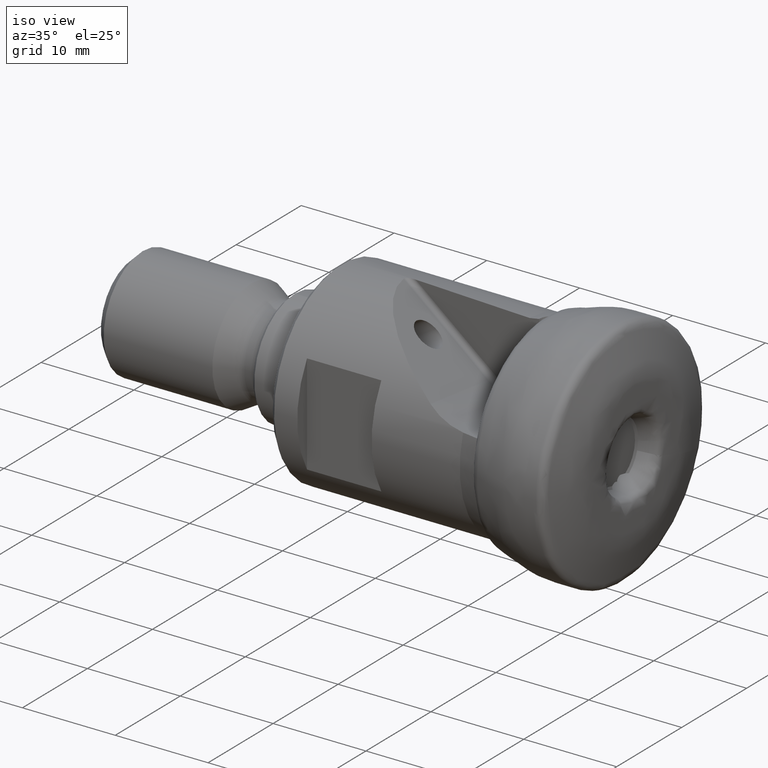
[diagram: clean part render]
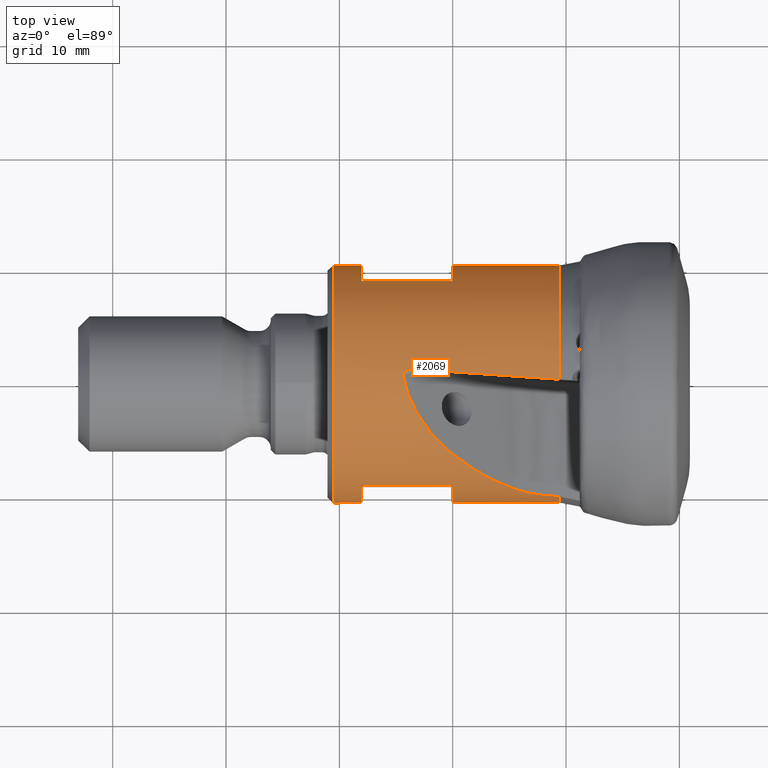
[diagram: tour spotlight — one face highlighted and labeled with its STEP entity id]
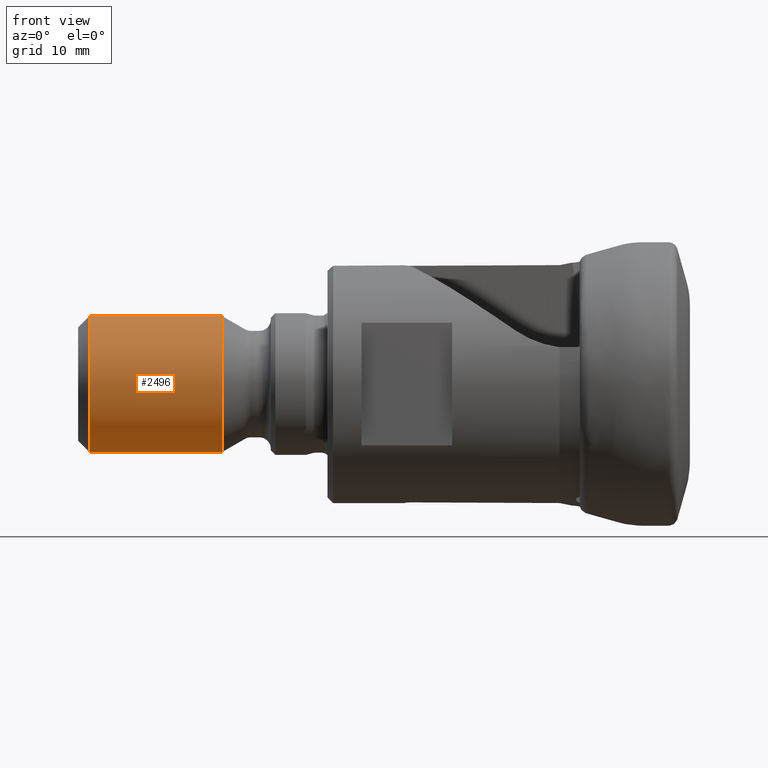
[diagram: tour spotlight — one face highlighted and labeled with its STEP entity id]
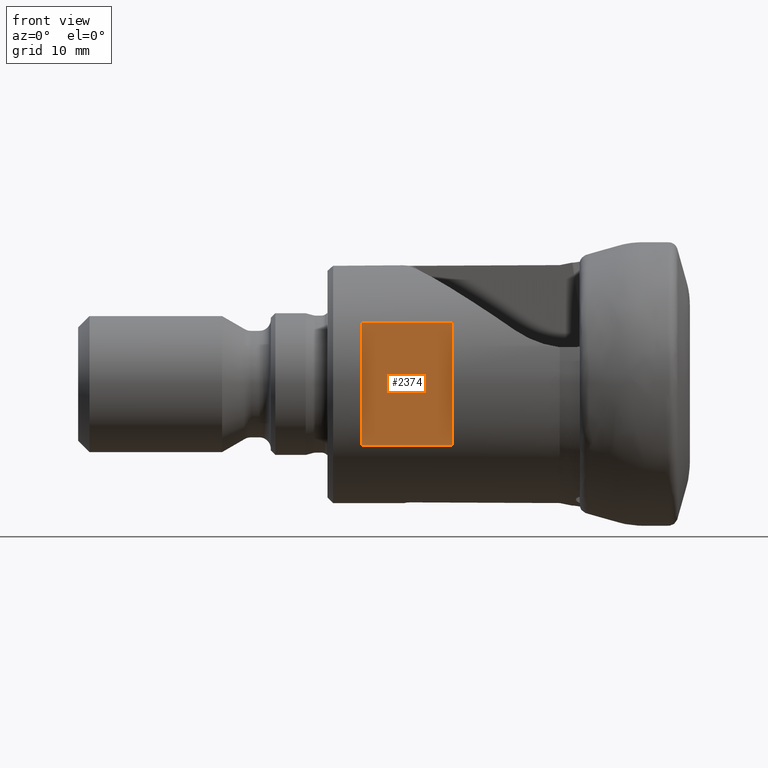
[diagram: tour spotlight — one face highlighted and labeled with its STEP entity id]
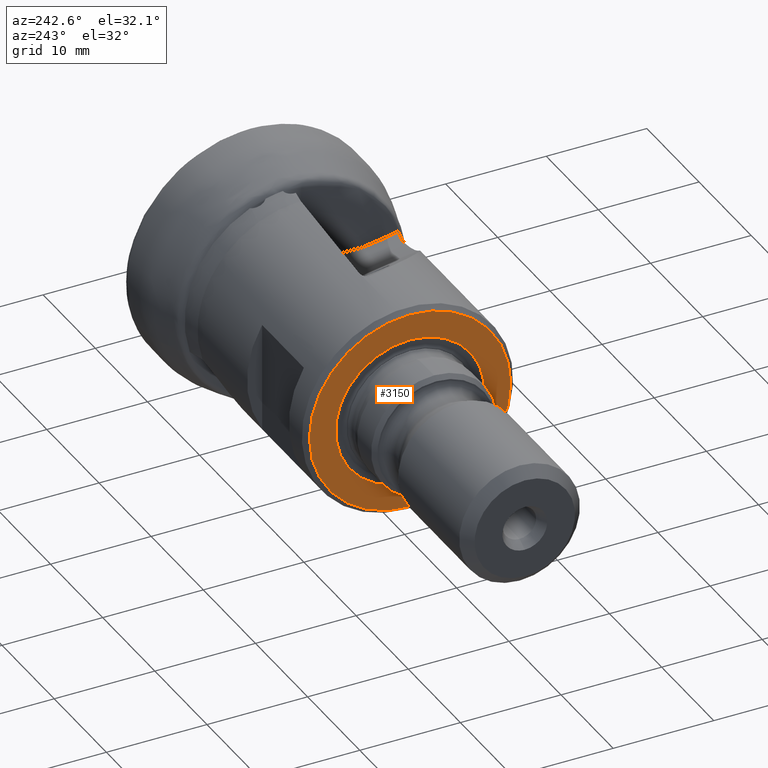
[diagram: tour spotlight — one face highlighted and labeled with its STEP entity id]
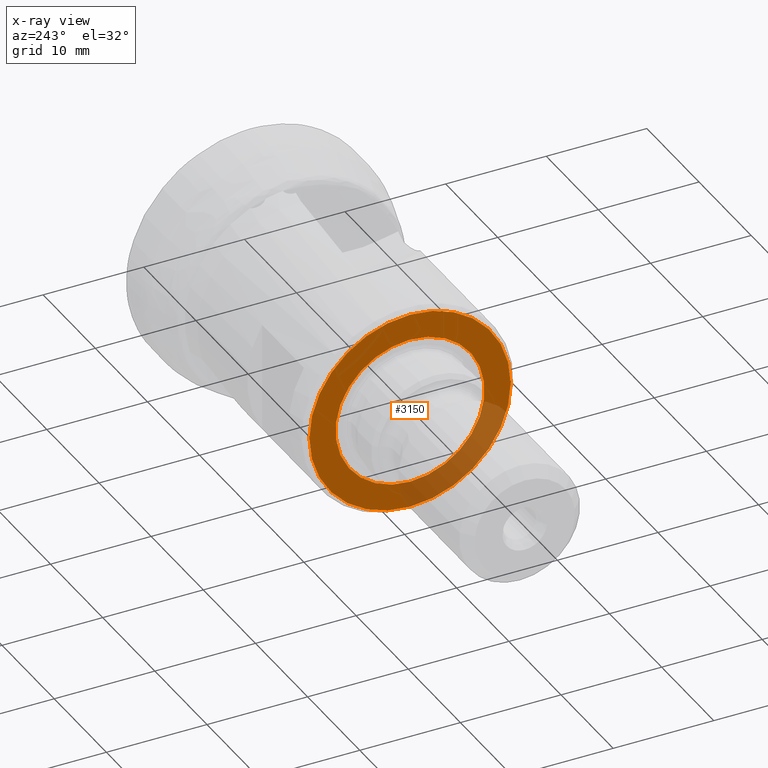
[diagram: x-ray of the same camera — body ghosted, this tour face saturated]
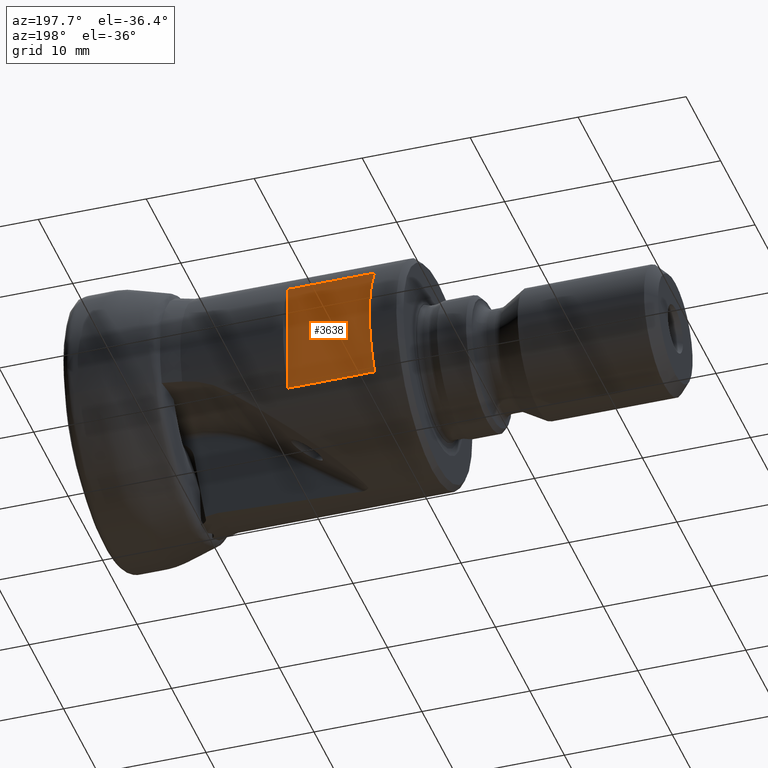
[diagram: tour spotlight — one face highlighted and labeled with its STEP entity id]
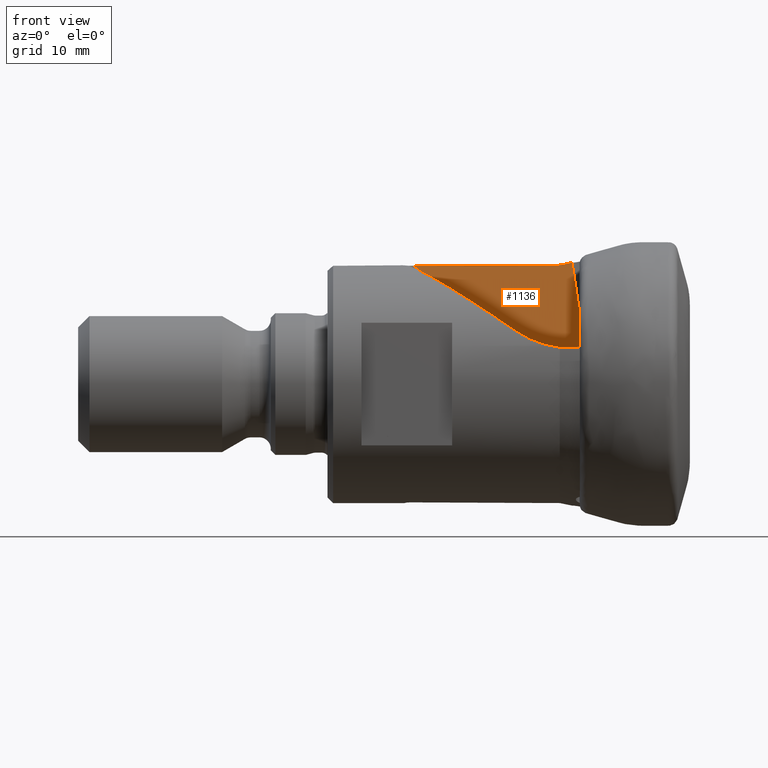
[diagram: tour spotlight — one face highlighted and labeled with its STEP entity id]
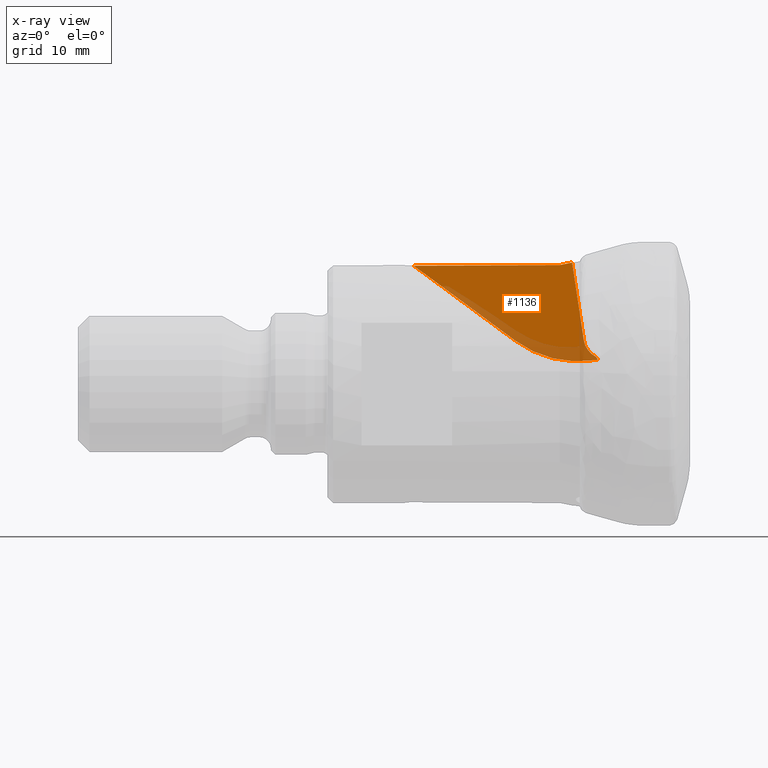
[diagram: x-ray of the same camera — body ghosted, this tour face saturated]
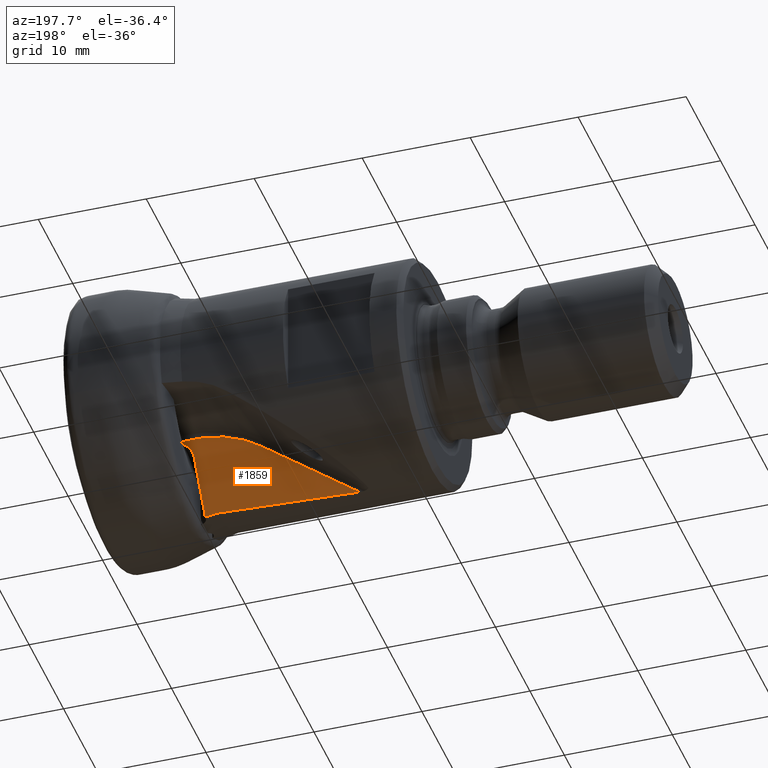
[diagram: tour spotlight — one face highlighted and labeled with its STEP entity id]
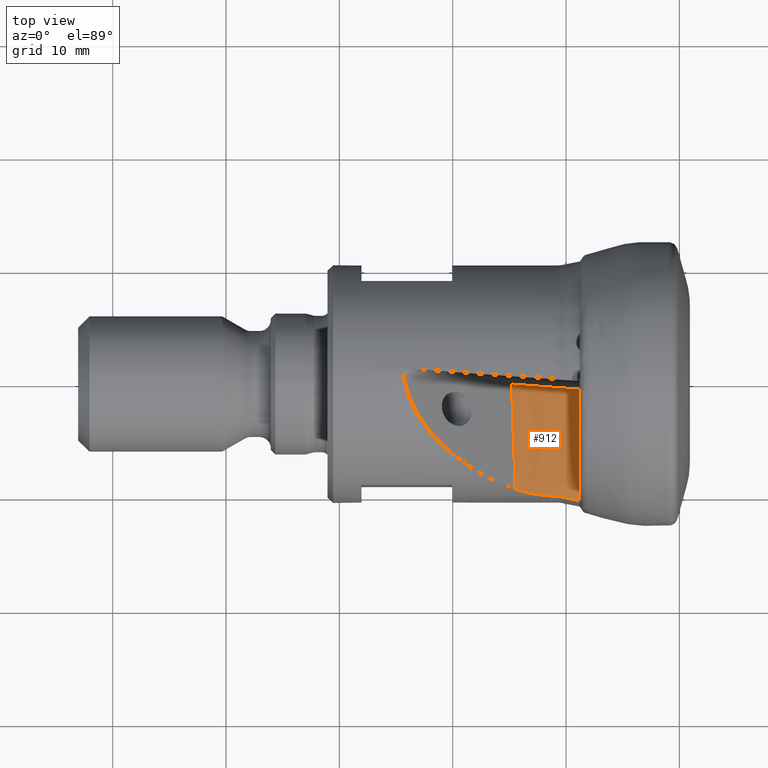
[diagram: tour spotlight — one face highlighted and labeled with its STEP entity id]
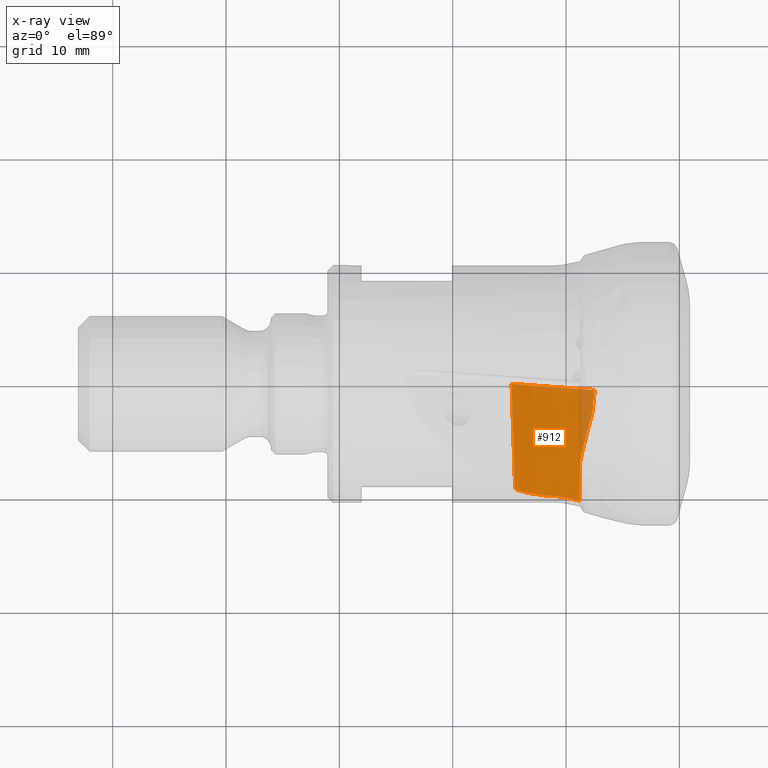
[diagram: x-ray of the same camera — body ghosted, this tour face saturated]
A machine part: a face-by-face anatomy tour. The part has 74 B-rep faces; the first image is the clean iso view, then the 8 largest visible faces are spotlighted one at a time (largest first), each with its STEP entity span.

Face 1 — top view, entity #2069. In plain terms, the highlighted cylindrical surface (bore or boss wall) has radius 10.5 mm, axis along (1, -0, -0).
Definition (entity closure, byte-faithful):
#14 = DIRECTION ( 'NONE',  ( 1.000000000000000000, -0.0000000000000000000, -0.0000000000000000000 ) ) ;
#20 = ORIENTED_EDGE ( 'NONE', *, *, #1101, .F. ) ;
#41 = DIRECTION ( 'NONE',  ( 1.000000000000000000, -0.0000000000000000000, -0.0000000000000000000 ) ) ;
#62 = EDGE_LOOP ( 'NONE', ( #1418 ) ) ;
#82 = CARTESIAN_POINT ( 'NONE',  ( -1.951563910473908400E-015, 9.000000000000001800, -5.408326913195973700 ) ) ;
#88 = DIRECTION ( 'NONE',  ( 1.000000000000000000, -0.0000000000000000000, -0.0000000000000000000 ) ) ;
#91 = CARTESIAN_POINT ( 'NONE',  ( -24.36729319867179200, -0.6144491265849352200, -10.48200611862247200 ) ) ;
#160 = LINE ( 'NONE', #3235, #1710 ) ;
#199 = EDGE_CURVE ( 'NONE', #3427, #3798, #240, .T. ) ;
#240 = CIRCLE ( 'NONE', #3495, 10.49999999999999800 ) ;
#259 = CARTESIAN_POINT ( 'NONE',  ( -1.951563910473908400E-015, 9.000000000000001800, 5.408326913195973700 ) ) ;
#262 = ORIENTED_EDGE ( 'NONE', *, *, #2520, .F. ) ;
#266 = B_SPLINE_CURVE_WITH_KNOTS ( 'NONE', 3,
 ( #3270, #2574, #1197, #3511, #1870, #326 ),
 .UNSPECIFIED., .F., .F.,
 ( 4, 2, 4 ),
 ( 0.0004361769970185758100, 0.002579508419088320400, 0.004722839841158065500 ),
 .UNSPECIFIED. ) ;
#281 = CARTESIAN_POINT ( 'NONE',  ( -24.36811838983613400, 0.7151204433131748100, 10.47572321763164100 ) ) ;
#284 = DIRECTION ( 'NONE',  ( 1.000000000000000000, -0.0000000000000000000, -0.0000000000000000000 ) ) ;
#297 = CARTESIAN_POINT ( 'NONE',  ( -11.26906418052038800, -9.957747916080689900, 3.331869115662275900 ) ) ;
#299 = VERTEX_POINT ( 'NONE', #661 ) ;
#311 = DIRECTION ( 'NONE',  ( 0.0000000000000000000, 0.0000000000000000000, 1.000000000000000000 ) ) ;
#326 = CARTESIAN_POINT ( 'NONE',  ( -10.55000000000031500, 9.985565406974913600, -3.246303051630548400 ) ) ;
#333 = CARTESIAN_POINT ( 'NONE',  ( -24.36729319867179200, 0.6144491265849352200, 10.48200611862247200 ) ) ;
#339 = CIRCLE ( 'NONE', #3628, 10.49999999999999500 ) ;
#356 = ORIENTED_EDGE ( 'NONE', *, *, #2746, .F. ) ;
#364 = CARTESIAN_POINT ( 'NONE',  ( 1.951563910473906800E-015, -8.999999999999994700, 5.408326913195984400 ) ) ;
#380 = VECTOR ( 'NONE', #284, 1000.000000000000000 ) ;
#385 =( BOUNDED_CURVE ( )  B_SPLINE_CURVE ( 3, ( #333, #651, #2537, #685 ),
 .UNSPECIFIED., .F., .T. ) 
 B_SPLINE_CURVE_WITH_KNOTS ( ( 4, 4 ),
 ( 3.248590257929277100, 4.409216499593799000 ),
 .UNSPECIFIED. ) 
 CURVE ( )  GEOMETRIC_REPRESENTATION_ITEM ( )  RATIONAL_B_SPLINE_CURVE ( ( 1.000000000000000000, 0.8908606741343052500, 0.8908606741343052500, 1.000000000000000000 ) ) 
 REPRESENTATION_ITEM ( '' )  );
#392 = FACE_BOUND ( 'NONE', #2109, .T. ) ;
#394 = CARTESIAN_POINT ( 'NONE',  ( -24.36729319867179200, 0.6144491265849352200, 10.48200611862247200 ) ) ;
#396 = AXIS2_PLACEMENT_3D ( 'NONE', #4030, #2162, #311 ) ;
#402 = VERTEX_POINT ( 'NONE', #2223 ) ;
#454 = AXIS2_PLACEMENT_3D ( 'NONE', #1953, #88, #2259 ) ;
#480 = CARTESIAN_POINT ( 'NONE',  ( -19.15590884345079900, -0.8382906862620878000, -10.47081765896384900 ) ) ;
#509 = VERTEX_POINT ( 'NONE', #721 ) ;
#575 = EDGE_CURVE ( 'NONE', #402, #3058, #657, .T. ) ;
#586 = CARTESIAN_POINT ( 'NONE',  ( -14.49160839475476700, 9.367534286264348300, -4.743342850317886500 ) ) ;
#606 = VERTEX_POINT ( 'NONE', #2614 ) ;
#636 = CARTESIAN_POINT ( 'NONE',  ( -24.36811838983613400, -0.7151204433131748100, -10.47572321763164100 ) ) ;
#643 = ORIENTED_EDGE ( 'NONE', *, *, #1139, .T. ) ;
#651 = CARTESIAN_POINT ( 'NONE',  ( -23.74531314412411800, -3.686362082713488900, 10.73411718030800300 ) ) ;
#657 =( BOUNDED_CURVE ( )  B_SPLINE_CURVE ( 3, ( #91, #1038, #1359, #3544 ),
 .UNSPECIFIED., .F., .F. ) 
 B_SPLINE_CURVE_WITH_KNOTS ( ( 4, 4 ),
 ( 3.248590257929277100, 4.409216499593799000 ),
 .UNSPECIFIED. ) 
 CURVE ( )  GEOMETRIC_REPRESENTATION_ITEM ( )  RATIONAL_B_SPLINE_CURVE ( ( 1.000000000000000000, 0.8908606741343052500, 0.8908606741343052500, 1.000000000000000000 ) ) 
 REPRESENTATION_ITEM ( '' )  );
#661 = CARTESIAN_POINT ( 'NONE',  ( -24.36729319867179200, 0.6144491265849352200, 10.48200611862247200 ) ) ;
#673 = CARTESIAN_POINT ( 'NONE',  ( -20.04999999999999400, 0.0000000000000000000, 0.0000000000000000000 ) ) ;
#677 = EDGE_CURVE ( 'NONE', #2235, #1064, #2514, .T. ) ;
#685 = CARTESIAN_POINT ( 'NONE',  ( -14.49160839475476700, -9.367534286264348300, 4.743342850317886500 ) ) ;
#690 = ORIENTED_EDGE ( 'NONE', *, *, #677, .F. ) ;
#696 = ORIENTED_EDGE ( 'NONE', *, *, #199, .F. ) ;
#699 = EDGE_CURVE ( 'NONE', #1574, #3750, #339, .T. ) ;
#721 = CARTESIAN_POINT ( 'NONE',  ( -10.55000000000031500, -9.985565406974913600, 3.246303051630548400 ) ) ;
#731 = CARTESIAN_POINT ( 'NONE',  ( -23.43866877536394000, 1.137770434620120700, 10.43817409502755200 ) ) ;
#789 = VERTEX_POINT ( 'NONE', #1950 ) ;
#892 = ORIENTED_EDGE ( 'NONE', *, *, #987, .F. ) ;
#933 = CARTESIAN_POINT ( 'NONE',  ( -24.37452394130150400, -0.6644476092147966200, -10.47907523653417900 ) ) ;
#947 = CARTESIAN_POINT ( 'NONE',  ( -24.30380760956484200, -0.8504268849483359600, -10.46556756167899800 ) ) ;
#976 = DIRECTION ( 'NONE',  ( 0.0000000000000000000, 0.0000000000000000000, -1.000000000000000000 ) ) ;
#979 = EDGE_CURVE ( 'NONE', #3750, #2235, #3259, .T. ) ;
#987 = EDGE_CURVE ( 'NONE', #1528, #509, #1695, .T. ) ;
#993 = CARTESIAN_POINT ( 'NONE',  ( -24.30380760956484200, 0.8504268849483359600, 10.46556756167899800 ) ) ;
#1022 = VECTOR ( 'NONE', #2253, 1000.000000000000000 ) ;
#1030 = AXIS2_PLACEMENT_3D ( 'NONE', #2982, #1097, #3296 ) ;
#1038 = CARTESIAN_POINT ( 'NONE',  ( -23.74531314412411800, 3.686362082713488900, -10.73411718030800300 ) ) ;
#1064 = VERTEX_POINT ( 'NONE', #1227 ) ;
#1076 = VECTOR ( 'NONE', #1590, 1000.000000000000000 ) ;
#1097 = DIRECTION ( 'NONE',  ( -1.000000000000000000, -0.0000000000000000000, -0.0000000000000000000 ) ) ;
#1101 = EDGE_CURVE ( 'NONE', #3058, #3427, #266, .T. ) ;
#1139 = EDGE_CURVE ( 'NONE', #299, #3095, #3583, .T. ) ;
#1197 = CARTESIAN_POINT ( 'NONE',  ( -13.30488542165850100, 9.704191605680064100, -4.019248608320285900 ) ) ;
#1227 = CARTESIAN_POINT ( 'NONE',  ( -20.04999999999999700, 8.999999999999996400, -5.408326913195973700 ) ) ;
#1250 = CARTESIAN_POINT ( 'NONE',  ( -24.11488260361923600, -1.011453585411904900, -10.45124184470107800 ) ) ;
#1300 = CARTESIAN_POINT ( 'NONE',  ( -23.63789472054936200, 1.151701669823368000, 10.43665557776699000 ) ) ;
#1359 = CARTESIAN_POINT ( 'NONE',  ( -20.05012821766196000, 7.421320759070405300, -8.586881578107492500 ) ) ;
#1418 = ORIENTED_EDGE ( 'NONE', *, *, #2447, .T. ) ;
#1512 = ORIENTED_EDGE ( 'NONE', *, *, #1602, .T. ) ;
#1528 = VERTEX_POINT ( 'NONE', #1622 ) ;
#1530 = CARTESIAN_POINT ( 'NONE',  ( -14.49160839475476700, -9.367534286264348300, 4.743342850317886500 ) ) ;
#1558 = EDGE_CURVE ( 'NONE', #2102, #3809, #3329, .T. ) ;
#1563 = CARTESIAN_POINT ( 'NONE',  ( -23.63789472054936200, -1.151701669823368000, -10.43665557776699000 ) ) ;
#1574 = VERTEX_POINT ( 'NONE', #3417 ) ;
#1590 = DIRECTION ( 'NONE',  ( -1.000000000000000000, 0.0000000000000000000, 0.0000000000000000000 ) ) ;
#1602 = EDGE_CURVE ( 'NONE', #402, #1706, #1824, .T. ) ;
#1607 = CARTESIAN_POINT ( 'NONE',  ( -23.83868405281455700, 1.126846770651109200, 10.43964530829305200 ) ) ;
#1622 = CARTESIAN_POINT ( 'NONE',  ( -14.49160839475476700, -9.367534286264348300, 4.743342850317886500 ) ) ;
#1635 = CARTESIAN_POINT ( 'NONE',  ( -10.55000000000031500, 9.985565406974913600, -3.246303051630548400 ) ) ;
#1641 = CARTESIAN_POINT ( 'NONE',  ( -14.85703395872927700, 0.5376840706295447100, 10.49055048899409200 ) ) ;
#1678 = EDGE_CURVE ( 'NONE', #299, #1528, #385, .T. ) ;
#1687 = CARTESIAN_POINT ( 'NONE',  ( -24.37452394130150400, 0.6644476092147966200, 10.47907523653417900 ) ) ;
#1695 = B_SPLINE_CURVE_WITH_KNOTS ( 'NONE', 3,
 ( #1530, #1833, #4022, #2152, #297, #2464 ),
 .UNSPECIFIED., .F., .F.,
 ( 4, 2, 4 ),
 ( 0.0004361769970185758100, 0.002579508419088320400, 0.004722839841158065500 ),
 .UNSPECIFIED. ) ;
#1706 = VERTEX_POINT ( 'NONE', #2216 ) ;
#1710 = VECTOR ( 'NONE', #2283, 1000.000000000000000 ) ;
#1718 = DIRECTION ( 'NONE',  ( 0.0000000000000000000, 0.0000000000000000000, -1.000000000000000000 ) ) ;
#1725 = CARTESIAN_POINT ( 'NONE',  ( -28.04999999999999700, 0.0000000000000000000, 0.0000000000000000000 ) ) ;
#1794 = EDGE_LOOP ( 'NONE', ( #892, #3519, #643, #2796, #696, #20, #2558, #1512, #356, #1840 ) ) ;
#1824 = B_SPLINE_CURVE_WITH_KNOTS ( 'NONE', 3,
 ( #3124, #933, #636, #2819, #947, #3138, #1250, #3444, #1563, #3751 ),
 .UNSPECIFIED., .F., .F.,
 ( 4, 2, 2, 2, 4 ),
 ( 1.626303258728256800E-018, 0.0001490341871279012900, 0.0002980683742558009600, 0.0005961367485115999600, 0.001192273497023207500 ),
 .UNSPECIFIED. ) ;
#1833 = CARTESIAN_POINT ( 'NONE',  ( -13.92318558424193500, -9.566557083381418600, 4.350296651766700300 ) ) ;
#1840 = ORIENTED_EDGE ( 'NONE', *, *, #2299, .F. ) ;
#1851 = EDGE_LOOP ( 'NONE', ( #690, #3848, #3289, #2590 ) ) ;
#1867 = CARTESIAN_POINT ( 'NONE',  ( -10.54999999999999700, 0.0000000000000000000, 0.0000000000000000000 ) ) ;
#1870 = CARTESIAN_POINT ( 'NONE',  ( -11.26906418052038800, 9.957747916080689900, -3.331869115662275900 ) ) ;
#1900 = CARTESIAN_POINT ( 'NONE',  ( -10.54999999999999700, 0.0000000000000000000, 0.0000000000000000000 ) ) ;
#1950 = CARTESIAN_POINT ( 'NONE',  ( -30.54999999999999700, 0.0000000000000000000, -10.49999999999999300 ) ) ;
#1953 = CARTESIAN_POINT ( 'NONE',  ( -30.54999999999999700, 0.0000000000000000000, 0.0000000000000000000 ) ) ;
#1970 = AXIS2_PLACEMENT_3D ( 'NONE', #3950, #3301, #1718 ) ;
#2017 = CARTESIAN_POINT ( 'NONE',  ( -10.54999999999999700, -0.2365069169632285600, -10.49733606579443000 ) ) ;
#2024 = CARTESIAN_POINT ( 'NONE',  ( -28.04999999999999400, -9.000000000000001800, 5.408326913195985200 ) ) ;
#2033 = DIRECTION ( 'NONE',  ( 0.0000000000000000000, -8.881784197001252300E-016, 1.000000000000000000 ) ) ;
#2069 = ADVANCED_FACE ( 'NONE', ( #3606, #392, #2787, #2138 ), #2682, .T. ) ;
#2102 = VERTEX_POINT ( 'NONE', #2024 ) ;
#2109 = EDGE_LOOP ( 'NONE', ( #2849, #3276, #2431, #262 ) ) ;
#2118 = CARTESIAN_POINT ( 'NONE',  ( -10.54999999999999700, 0.2365069169632285600, 10.49733606579443000 ) ) ;
#2120 = CARTESIAN_POINT ( 'NONE',  ( -23.43866877536394000, 1.137770434620120700, 10.43817409502755200 ) ) ;
#2138 = FACE_OUTER_BOUND ( 'NONE', #62, .T. ) ;
#2152 = CARTESIAN_POINT ( 'NONE',  ( -11.96635819300559300, -9.901359291518490500, 3.505535376443424500 ) ) ;
#2162 = DIRECTION ( 'NONE',  ( 1.000000000000000000, 0.0000000000000000000, 0.0000000000000000000 ) ) ;
#2180 = DIRECTION ( 'NONE',  ( 0.0000000000000000000, 0.0000000000000000000, -1.000000000000000000 ) ) ;
#2208 = DIRECTION ( 'NONE',  ( 0.0000000000000000000, 0.0000000000000000000, -1.000000000000000000 ) ) ;
#2216 = CARTESIAN_POINT ( 'NONE',  ( -23.43866877536394000, -1.137770434620120700, -10.43817409502755200 ) ) ;
#2223 = CARTESIAN_POINT ( 'NONE',  ( -24.36729319867179200, -0.6144491265849352200, -10.48200611862247200 ) ) ;
#2235 = VERTEX_POINT ( 'NONE', #3461 ) ;
#2253 = DIRECTION ( 'NONE',  ( -1.000000000000000000, 0.0000000000000000000, 0.0000000000000000000 ) ) ;
#2259 = DIRECTION ( 'NONE',  ( 0.0000000000000000000, 0.0000000000000000000, -1.000000000000000000 ) ) ;
#2283 = DIRECTION ( 'NONE',  ( 1.000000000000000000, -0.0000000000000000000, -0.0000000000000000000 ) ) ;
#2299 = EDGE_CURVE ( 'NONE', #509, #606, #2542, .T. ) ;
#2330 = CARTESIAN_POINT ( 'NONE',  ( -14.85703395872927700, -0.5376840706295447100, -10.49055048899409200 ) ) ;
#2349 = CIRCLE ( 'NONE', #454, 10.49999999999999300 ) ;
#2351 = EDGE_CURVE ( 'NONE', #3374, #2102, #2448, .T. ) ;
#2431 = ORIENTED_EDGE ( 'NONE', *, *, #4014, .F. ) ;
#2447 = EDGE_CURVE ( 'NONE', #789, #789, #2349, .T. ) ;
#2448 = LINE ( 'NONE', #364, #1076 ) ;
#2464 = CARTESIAN_POINT ( 'NONE',  ( -10.55000000000031500, -9.985565406974913600, 3.246303051630548400 ) ) ;
#2470 = EDGE_CURVE ( 'NONE', #3798, #3095, #2683, .T. ) ;
#2514 = CIRCLE ( 'NONE', #1030, 10.49999999999999500 ) ;
#2520 = EDGE_CURVE ( 'NONE', #3809, #2988, #160, .T. ) ;
#2537 = CARTESIAN_POINT ( 'NONE',  ( -20.05012821766196000, -7.421320759070405300, 8.586881578107492500 ) ) ;
#2538 = CARTESIAN_POINT ( 'NONE',  ( -23.43866877536394000, 1.137770434620120700, 10.43817409502755200 ) ) ;
#2542 = CIRCLE ( 'NONE', #3459, 10.49999999999999800 ) ;
#2558 = ORIENTED_EDGE ( 'NONE', *, *, #575, .F. ) ;
#2574 = CARTESIAN_POINT ( 'NONE',  ( -13.92318558424193500, 9.566557083381418600, -4.350296651766700300 ) ) ;
#2584 = CARTESIAN_POINT ( 'NONE',  ( -19.15590884345079900, 0.8382906862620878000, 10.47081765896384900 ) ) ;
#2590 = ORIENTED_EDGE ( 'NONE', *, *, #3421, .F. ) ;
#2614 = CARTESIAN_POINT ( 'NONE',  ( -10.54999999999999700, -0.2365069169632285600, -10.49733606579443000 ) ) ;
#2661 = CARTESIAN_POINT ( 'NONE',  ( -23.43866877536394000, -1.137770434620120700, -10.43817409502755200 ) ) ;
#2682 = CYLINDRICAL_SURFACE ( 'NONE', #1970, 10.49999999999999500 ) ;
#2683 =( BOUNDED_CURVE ( )  B_SPLINE_CURVE ( 3, ( #3806, #1641, #2584, #731 ),
 .UNSPECIFIED., .F., .T. ) 
 B_SPLINE_CURVE_WITH_KNOTS ( ( 4, 4 ),
 ( 1.593322700149864200, 1.679368597316593900 ),
 .UNSPECIFIED. ) 
 CURVE ( )  GEOMETRIC_REPRESENTATION_ITEM ( )  RATIONAL_B_SPLINE_CURVE ( ( 1.000000000000000000, 0.9993831037954464800, 0.9993831037954464800, 1.000000000000000000 ) ) 
 REPRESENTATION_ITEM ( '' )  );
#2746 = EDGE_CURVE ( 'NONE', #606, #1706, #3828, .T. ) ;
#2787 = FACE_BOUND ( 'NONE', #1851, .T. ) ;
#2796 = ORIENTED_EDGE ( 'NONE', *, *, #2470, .F. ) ;
#2819 = CARTESIAN_POINT ( 'NONE',  ( -24.33255460788732400, -0.8081310136468136100, -10.46895880427720700 ) ) ;
#2849 = ORIENTED_EDGE ( 'NONE', *, *, #1558, .F. ) ;
#2853 = DIRECTION ( 'NONE',  ( -1.000000000000000000, 0.0000000000000000000, -0.0000000000000000000 ) ) ;
#2868 = CARTESIAN_POINT ( 'NONE',  ( -24.33255460788732400, 0.8081310136468136100, 10.46895880427720700 ) ) ;
#2870 = CARTESIAN_POINT ( 'NONE',  ( -20.04999999999999400, -9.000000000000000000, 5.408326913195976400 ) ) ;
#2891 = LINE ( 'NONE', #82, #1022 ) ;
#2982 = CARTESIAN_POINT ( 'NONE',  ( -20.04999999999999700, 0.0000000000000000000, 0.0000000000000000000 ) ) ;
#2988 = VERTEX_POINT ( 'NONE', #3657 ) ;
#3053 = CARTESIAN_POINT ( 'NONE',  ( -28.04999999999999700, 8.999999999999994700, 5.408326913195984400 ) ) ;
#3058 = VERTEX_POINT ( 'NONE', #586 ) ;
#3095 = VERTEX_POINT ( 'NONE', #2120 ) ;
#3124 = CARTESIAN_POINT ( 'NONE',  ( -24.36729319867179200, -0.6144491265849352200, -10.48200611862247200 ) ) ;
#3138 = CARTESIAN_POINT ( 'NONE',  ( -24.20235728227331200, -0.9594547644837316800, -10.45632668071118100 ) ) ;
#3185 = CARTESIAN_POINT ( 'NONE',  ( -24.20235728227331200, 0.9594547644837316800, 10.45632668071118100 ) ) ;
#3235 = CARTESIAN_POINT ( 'NONE',  ( 1.951563910473906800E-015, -8.999999999999994700, -5.408326913195984400 ) ) ;
#3259 = LINE ( 'NONE', #259, #380 ) ;
#3270 = CARTESIAN_POINT ( 'NONE',  ( -14.49160839475476700, 9.367534286264348300, -4.743342850317886500 ) ) ;
#3276 = ORIENTED_EDGE ( 'NONE', *, *, #2351, .F. ) ;
#3289 = ORIENTED_EDGE ( 'NONE', *, *, #699, .F. ) ;
#3296 = DIRECTION ( 'NONE',  ( 0.0000000000000000000, -8.881784197001252300E-016, -1.000000000000000000 ) ) ;
#3301 = DIRECTION ( 'NONE',  ( 1.000000000000000000, -0.0000000000000000000, -0.0000000000000000000 ) ) ;
#3329 = CIRCLE ( 'NONE', #396, 10.49999999999999500 ) ;
#3374 = VERTEX_POINT ( 'NONE', #2870 ) ;
#3417 = CARTESIAN_POINT ( 'NONE',  ( -28.04999999999999700, 8.999999999999994700, -5.408326913195984400 ) ) ;
#3421 = EDGE_CURVE ( 'NONE', #1064, #1574, #2891, .T. ) ;
#3427 = VERTEX_POINT ( 'NONE', #1635 ) ;
#3444 = CARTESIAN_POINT ( 'NONE',  ( -23.83868405281455700, -1.126846770651109200, -10.43964530829305200 ) ) ;
#3459 = AXIS2_PLACEMENT_3D ( 'NONE', #1900, #41, #2208 ) ;
#3461 = CARTESIAN_POINT ( 'NONE',  ( -20.04999999999999700, 8.999999999999996400, 5.408326913195975500 ) ) ;
#3489 = CARTESIAN_POINT ( 'NONE',  ( -24.11488260361923600, 1.011453585411904900, 10.45124184470107800 ) ) ;
#3495 = AXIS2_PLACEMENT_3D ( 'NONE', #1867, #14, #2180 ) ;
#3511 = CARTESIAN_POINT ( 'NONE',  ( -11.96635819300559300, 9.901359291518490500, -3.505535376443424500 ) ) ;
#3519 = ORIENTED_EDGE ( 'NONE', *, *, #1678, .F. ) ;
#3544 = CARTESIAN_POINT ( 'NONE',  ( -14.49160839475476700, 9.367534286264348300, -4.743342850317886500 ) ) ;
#3583 = B_SPLINE_CURVE_WITH_KNOTS ( 'NONE', 3,
 ( #394, #1687, #281, #2868, #993, #3185, #3489, #1607, #1300, #2538 ),
 .UNSPECIFIED., .F., .F.,
 ( 4, 2, 2, 2, 4 ),
 ( 1.626303258728256800E-018, 0.0001490341871279012900, 0.0002980683742558009600, 0.0005961367485115999600, 0.001192273497023207500 ),
 .UNSPECIFIED. ) ;
#3606 = FACE_OUTER_BOUND ( 'NONE', #1794, .T. ) ;
#3628 = AXIS2_PLACEMENT_3D ( 'NONE', #1725, #3909, #2033 ) ;
#3657 = CARTESIAN_POINT ( 'NONE',  ( -20.04999999999999400, -9.000000000000000000, -5.408326913195976400 ) ) ;
#3750 = VERTEX_POINT ( 'NONE', #3053 ) ;
#3751 = CARTESIAN_POINT ( 'NONE',  ( -23.43866877536394000, -1.137770434620120700, -10.43817409502755200 ) ) ;
#3764 = CIRCLE ( 'NONE', #3772, 10.49999999999999500 ) ;
#3772 = AXIS2_PLACEMENT_3D ( 'NONE', #673, #2853, #976 ) ;
#3798 = VERTEX_POINT ( 'NONE', #2118 ) ;
#3806 = CARTESIAN_POINT ( 'NONE',  ( -10.54999999999999700, 0.2365069169632285600, 10.49733606579443000 ) ) ;
#3809 = VERTEX_POINT ( 'NONE', #4017 ) ;
#3828 =( BOUNDED_CURVE ( )  B_SPLINE_CURVE ( 3, ( #2017, #2330, #480, #2661 ),
 .UNSPECIFIED., .F., .F. ) 
 B_SPLINE_CURVE_WITH_KNOTS ( ( 4, 4 ),
 ( 1.593322700149864200, 1.679368597316593900 ),
 .UNSPECIFIED. ) 
 CURVE ( )  GEOMETRIC_REPRESENTATION_ITEM ( )  RATIONAL_B_SPLINE_CURVE ( ( 1.000000000000000000, 0.9993831037954464800, 0.9993831037954464800, 1.000000000000000000 ) ) 
 REPRESENTATION_ITEM ( '' )  );
#3848 = ORIENTED_EDGE ( 'NONE', *, *, #979, .F. ) ;
#3909 = DIRECTION ( 'NONE',  ( 1.000000000000000000, -0.0000000000000000000, -0.0000000000000000000 ) ) ;
#3950 = CARTESIAN_POINT ( 'NONE',  ( 0.0000000000000000000, 0.0000000000000000000, 0.0000000000000000000 ) ) ;
#4014 = EDGE_CURVE ( 'NONE', #2988, #3374, #3764, .T. ) ;
#4017 = CARTESIAN_POINT ( 'NONE',  ( -28.04999999999999400, -9.000000000000001800, -5.408326913195985200 ) ) ;
#4022 = CARTESIAN_POINT ( 'NONE',  ( -13.30488542165850100, -9.704191605680064100, 4.019248608320285900 ) ) ;
#4030 = CARTESIAN_POINT ( 'NONE',  ( -28.04999999999999400, 0.0000000000000000000, 0.0000000000000000000 ) ) ;

Face 2 — front view, entity #2496. In plain terms, the highlighted cylindrical surface (bore or boss wall) has radius 6 mm, axis along (1, -0, -0).
Definition (entity closure, byte-faithful):
#57 = CYLINDRICAL_SURFACE ( 'NONE', #1898, 5.999999999999992900 ) ;
#105 = DIRECTION ( 'NONE',  ( 0.0000000000000000000, 0.0000000000000000000, -1.000000000000000000 ) ) ;
#145 = VERTEX_POINT ( 'NONE', #2865 ) ;
#157 = ORIENTED_EDGE ( 'NONE', *, *, #3232, .F. ) ;
#511 = AXIS2_PLACEMENT_3D ( 'NONE', #666, #2845, #969 ) ;
#564 = DIRECTION ( 'NONE',  ( 1.000000000000000000, -0.0000000000000000000, -0.0000000000000000000 ) ) ;
#666 = CARTESIAN_POINT ( 'NONE',  ( -40.34999999999999400, 0.0000000000000000000, 0.0000000000000000000 ) ) ;
#863 = EDGE_CURVE ( 'NONE', #145, #145, #3025, .T. ) ;
#969 = DIRECTION ( 'NONE',  ( 0.0000000000000000000, 0.0000000000000000000, -1.000000000000000000 ) ) ;
#991 = FACE_OUTER_BOUND ( 'NONE', #1178, .T. ) ;
#1178 = EDGE_LOOP ( 'NONE', ( #157 ) ) ;
#1317 = CIRCLE ( 'NONE', #511, 5.999999999999992900 ) ;
#1898 = AXIS2_PLACEMENT_3D ( 'NONE', #2268, #3531, #105 ) ;
#2268 = CARTESIAN_POINT ( 'NONE',  ( 0.0000000000000000000, 0.0000000000000000000, 0.0000000000000000000 ) ) ;
#2270 = AXIS2_PLACEMENT_3D ( 'NONE', #2412, #564, #2736 ) ;
#2340 = FACE_OUTER_BOUND ( 'NONE', #3708, .T. ) ;
#2412 = CARTESIAN_POINT ( 'NONE',  ( -52.04999999999999700, 0.0000000000000000000, 0.0000000000000000000 ) ) ;
#2496 = ADVANCED_FACE ( 'NONE', ( #2340, #991 ), #57, .T. ) ;
#2736 = DIRECTION ( 'NONE',  ( 0.0000000000000000000, 0.0000000000000000000, -1.000000000000000000 ) ) ;
#2845 = DIRECTION ( 'NONE',  ( 1.000000000000000000, -0.0000000000000000000, -0.0000000000000000000 ) ) ;
#2865 = CARTESIAN_POINT ( 'NONE',  ( -52.04999999999999700, 0.0000000000000000000, -5.999999999999992000 ) ) ;
#2910 = CARTESIAN_POINT ( 'NONE',  ( -40.34999999999999400, 0.0000000000000000000, -5.999999999999992900 ) ) ;
#3025 = CIRCLE ( 'NONE', #2270, 5.999999999999992000 ) ;
#3102 = ORIENTED_EDGE ( 'NONE', *, *, #863, .T. ) ;
#3232 = EDGE_CURVE ( 'NONE', #3897, #3897, #1317, .T. ) ;
#3531 = DIRECTION ( 'NONE',  ( 1.000000000000000000, -0.0000000000000000000, -0.0000000000000000000 ) ) ;
#3708 = EDGE_LOOP ( 'NONE', ( #3102 ) ) ;
#3897 = VERTEX_POINT ( 'NONE', #2910 ) ;

Face 3 — front view, entity #2374. In plain terms, the highlighted planar face has unit normal (-0, 1, 0).
Definition (entity closure, byte-faithful):
#54 = DIRECTION ( 'NONE',  ( -2.168404344971009100E-016, 1.000000000000000000, 0.0000000000000000000 ) ) ;
#129 = LINE ( 'NONE', #2800, #541 ) ;
#146 = EDGE_CURVE ( 'NONE', #3809, #2102, #129, .T. ) ;
#160 = LINE ( 'NONE', #3235, #1710 ) ;
#248 = AXIS2_PLACEMENT_3D ( 'NONE', #3178, #54, #2219 ) ;
#364 = CARTESIAN_POINT ( 'NONE',  ( 1.951563910473906800E-015, -8.999999999999994700, 5.408326913195984400 ) ) ;
#541 = VECTOR ( 'NONE', #3738, 1000.000000000000000 ) ;
#1015 = EDGE_LOOP ( 'NONE', ( #3554, #1360, #3955, #1748 ) ) ;
#1076 = VECTOR ( 'NONE', #1590, 1000.000000000000000 ) ;
#1360 = ORIENTED_EDGE ( 'NONE', *, *, #146, .F. ) ;
#1590 = DIRECTION ( 'NONE',  ( -1.000000000000000000, 0.0000000000000000000, 0.0000000000000000000 ) ) ;
#1710 = VECTOR ( 'NONE', #2283, 1000.000000000000000 ) ;
#1748 = ORIENTED_EDGE ( 'NONE', *, *, #2323, .T. ) ;
#2024 = CARTESIAN_POINT ( 'NONE',  ( -28.04999999999999400, -9.000000000000001800, 5.408326913195985200 ) ) ;
#2102 = VERTEX_POINT ( 'NONE', #2024 ) ;
#2219 = DIRECTION ( 'NONE',  ( -1.000000000000000000, -2.168404344971009100E-016, 0.0000000000000000000 ) ) ;
#2283 = DIRECTION ( 'NONE',  ( 1.000000000000000000, -0.0000000000000000000, -0.0000000000000000000 ) ) ;
#2323 = EDGE_CURVE ( 'NONE', #2988, #3374, #3103, .T. ) ;
#2351 = EDGE_CURVE ( 'NONE', #3374, #2102, #2448, .T. ) ;
#2374 = ADVANCED_FACE ( 'NONE', ( #3196 ), #3792, .F. ) ;
#2448 = LINE ( 'NONE', #364, #1076 ) ;
#2520 = EDGE_CURVE ( 'NONE', #3809, #2988, #160, .T. ) ;
#2800 = CARTESIAN_POINT ( 'NONE',  ( -28.04999999999999400, -9.000000000000001800, -15.00000000000000000 ) ) ;
#2835 = DIRECTION ( 'NONE',  ( -0.0000000000000000000, -0.0000000000000000000, 1.000000000000000000 ) ) ;
#2850 = CARTESIAN_POINT ( 'NONE',  ( -20.04999999999999400, -9.000000000000000000, -15.00000000000000000 ) ) ;
#2870 = CARTESIAN_POINT ( 'NONE',  ( -20.04999999999999400, -9.000000000000000000, 5.408326913195976400 ) ) ;
#2988 = VERTEX_POINT ( 'NONE', #3657 ) ;
#3103 = LINE ( 'NONE', #2850, #3910 ) ;
#3178 = CARTESIAN_POINT ( 'NONE',  ( -20.04999999999999400, -9.000000000000000000, -15.00000000000000000 ) ) ;
#3196 = FACE_OUTER_BOUND ( 'NONE', #1015, .T. ) ;
#3235 = CARTESIAN_POINT ( 'NONE',  ( 1.951563910473906800E-015, -8.999999999999994700, -5.408326913195984400 ) ) ;
#3374 = VERTEX_POINT ( 'NONE', #2870 ) ;
#3554 = ORIENTED_EDGE ( 'NONE', *, *, #2351, .T. ) ;
#3657 = CARTESIAN_POINT ( 'NONE',  ( -20.04999999999999400, -9.000000000000000000, -5.408326913195976400 ) ) ;
#3738 = DIRECTION ( 'NONE',  ( -0.0000000000000000000, -0.0000000000000000000, 1.000000000000000000 ) ) ;
#3792 = PLANE ( 'NONE',  #248 ) ;
#3809 = VERTEX_POINT ( 'NONE', #4017 ) ;
#3910 = VECTOR ( 'NONE', #2835, 1000.000000000000000 ) ;
#3955 = ORIENTED_EDGE ( 'NONE', *, *, #2520, .T. ) ;
#4017 = CARTESIAN_POINT ( 'NONE',  ( -28.04999999999999400, -9.000000000000001800, -5.408326913195985200 ) ) ;

Face 4 — auxiliary view, entity #3150. An x-ray twin of the same camera follows (body ghosted, this face saturated) — the face is partly hidden behind the body. In plain terms, the highlighted planar face has unit normal (-1, 0, 0).
Definition (entity closure, byte-faithful):
#191 = ORIENTED_EDGE ( 'NONE', *, *, #2096, .F. ) ;
#222 = ORIENTED_EDGE ( 'NONE', *, *, #3777, .T. ) ;
#304 = AXIS2_PLACEMENT_3D ( 'NONE', #3727, #3111, #4031 ) ;
#601 = VERTEX_POINT ( 'NONE', #3529 ) ;
#620 = DIRECTION ( 'NONE',  ( 1.000000000000000000, -0.0000000000000000000, -0.0000000000000000000 ) ) ;
#1465 = CIRCLE ( 'NONE', #1876, 7.400000000000000400 ) ;
#1639 = CARTESIAN_POINT ( 'NONE',  ( -31.04999999999999700, 0.0000000000000000000, -9.999999999999994700 ) ) ;
#1773 = AXIS2_PLACEMENT_3D ( 'NONE', #2468, #620, #2798 ) ;
#1802 = DIRECTION ( 'NONE',  ( 1.000000000000000000, -0.0000000000000000000, -0.0000000000000000000 ) ) ;
#1876 = AXIS2_PLACEMENT_3D ( 'NONE', #3683, #1802, #3988 ) ;
#2096 = EDGE_CURVE ( 'NONE', #2436, #2436, #3509, .T. ) ;
#2232 = FACE_BOUND ( 'NONE', #2892, .T. ) ;
#2436 = VERTEX_POINT ( 'NONE', #1639 ) ;
#2468 = CARTESIAN_POINT ( 'NONE',  ( -31.04999999999999700, 0.0000000000000000000, 0.0000000000000000000 ) ) ;
#2798 = DIRECTION ( 'NONE',  ( 0.0000000000000000000, 0.0000000000000000000, -1.000000000000000000 ) ) ;
#2846 = EDGE_LOOP ( 'NONE', ( #191 ) ) ;
#2892 = EDGE_LOOP ( 'NONE', ( #222 ) ) ;
#3111 = DIRECTION ( 'NONE',  ( -1.000000000000000000, 0.0000000000000000000, 0.0000000000000000000 ) ) ;
#3150 = ADVANCED_FACE ( 'NONE', ( #2232, #3811 ), #3418, .T. ) ;
#3418 = PLANE ( 'NONE',  #304 ) ;
#3509 = CIRCLE ( 'NONE', #1773, 9.999999999999994700 ) ;
#3529 = CARTESIAN_POINT ( 'NONE',  ( -31.04999999999999700, 0.0000000000000000000, -7.400000000000000400 ) ) ;
#3683 = CARTESIAN_POINT ( 'NONE',  ( -31.04999999999999700, 0.0000000000000000000, 0.0000000000000000000 ) ) ;
#3727 = CARTESIAN_POINT ( 'NONE',  ( -31.04999999999999700, 9.999999999999994700, 0.0000000000000000000 ) ) ;
#3777 = EDGE_CURVE ( 'NONE', #601, #601, #1465, .T. ) ;
#3811 = FACE_OUTER_BOUND ( 'NONE', #2846, .T. ) ;
#3988 = DIRECTION ( 'NONE',  ( 0.0000000000000000000, 0.0000000000000000000, -1.000000000000000000 ) ) ;
#4031 = DIRECTION ( 'NONE',  ( 0.0000000000000000000, 0.0000000000000000000, 1.000000000000000000 ) ) ;

Face 5 — auxiliary view, entity #3638. In plain terms, the highlighted planar face has unit normal (0, -1, 0).
Definition (entity closure, byte-faithful):
#82 = CARTESIAN_POINT ( 'NONE',  ( -1.951563910473908400E-015, 9.000000000000001800, -5.408326913195973700 ) ) ;
#189 = DIRECTION ( 'NONE',  ( 2.168404344971009100E-016, -1.000000000000000000, 0.0000000000000000000 ) ) ;
#259 = CARTESIAN_POINT ( 'NONE',  ( -1.951563910473908400E-015, 9.000000000000001800, 5.408326913195973700 ) ) ;
#284 = DIRECTION ( 'NONE',  ( 1.000000000000000000, -0.0000000000000000000, -0.0000000000000000000 ) ) ;
#295 = CARTESIAN_POINT ( 'NONE',  ( -28.04999999999999700, 8.999999999999994700, -15.00000000000000000 ) ) ;
#330 = CARTESIAN_POINT ( 'NONE',  ( -20.04999999999999700, 8.999999999999996400, -15.00000000000000000 ) ) ;
#342 = VECTOR ( 'NONE', #2497, 1000.000000000000000 ) ;
#380 = VECTOR ( 'NONE', #284, 1000.000000000000000 ) ;
#632 = ORIENTED_EDGE ( 'NONE', *, *, #979, .T. ) ;
#807 = CARTESIAN_POINT ( 'NONE',  ( -20.04999999999999700, 8.999999999999996400, -15.00000000000000000 ) ) ;
#829 = EDGE_LOOP ( 'NONE', ( #1939, #3394, #632, #2407 ) ) ;
#979 = EDGE_CURVE ( 'NONE', #3750, #2235, #3259, .T. ) ;
#1022 = VECTOR ( 'NONE', #2253, 1000.000000000000000 ) ;
#1064 = VERTEX_POINT ( 'NONE', #1227 ) ;
#1227 = CARTESIAN_POINT ( 'NONE',  ( -20.04999999999999700, 8.999999999999996400, -5.408326913195973700 ) ) ;
#1257 = AXIS2_PLACEMENT_3D ( 'NONE', #807, #189, #2356 ) ;
#1420 = EDGE_CURVE ( 'NONE', #1574, #3750, #2324, .T. ) ;
#1574 = VERTEX_POINT ( 'NONE', #3417 ) ;
#1939 = ORIENTED_EDGE ( 'NONE', *, *, #3421, .T. ) ;
#1979 = LINE ( 'NONE', #330, #342 ) ;
#2039 = VECTOR ( 'NONE', #2637, 1000.000000000000000 ) ;
#2042 = PLANE ( 'NONE',  #1257 ) ;
#2179 = EDGE_CURVE ( 'NONE', #1064, #2235, #1979, .T. ) ;
#2235 = VERTEX_POINT ( 'NONE', #3461 ) ;
#2253 = DIRECTION ( 'NONE',  ( -1.000000000000000000, 0.0000000000000000000, 0.0000000000000000000 ) ) ;
#2324 = LINE ( 'NONE', #295, #2039 ) ;
#2356 = DIRECTION ( 'NONE',  ( 1.000000000000000000, 2.168404344971009100E-016, 0.0000000000000000000 ) ) ;
#2407 = ORIENTED_EDGE ( 'NONE', *, *, #2179, .F. ) ;
#2497 = DIRECTION ( 'NONE',  ( -0.0000000000000000000, -0.0000000000000000000, 1.000000000000000000 ) ) ;
#2637 = DIRECTION ( 'NONE',  ( -0.0000000000000000000, -0.0000000000000000000, 1.000000000000000000 ) ) ;
#2891 = LINE ( 'NONE', #82, #1022 ) ;
#3053 = CARTESIAN_POINT ( 'NONE',  ( -28.04999999999999700, 8.999999999999994700, 5.408326913195984400 ) ) ;
#3144 = FACE_OUTER_BOUND ( 'NONE', #829, .T. ) ;
#3259 = LINE ( 'NONE', #259, #380 ) ;
#3394 = ORIENTED_EDGE ( 'NONE', *, *, #1420, .T. ) ;
#3417 = CARTESIAN_POINT ( 'NONE',  ( -28.04999999999999700, 8.999999999999994700, -5.408326913195984400 ) ) ;
#3421 = EDGE_CURVE ( 'NONE', #1064, #1574, #2891, .T. ) ;
#3461 = CARTESIAN_POINT ( 'NONE',  ( -20.04999999999999700, 8.999999999999996400, 5.408326913195975500 ) ) ;
#3638 = ADVANCED_FACE ( 'NONE', ( #3144 ), #2042, .F. ) ;
#3750 = VERTEX_POINT ( 'NONE', #3053 ) ;

Face 6 — front view, entity #1136. An x-ray twin of the same camera follows (body ghosted, this face saturated) — the face is partly hidden behind the body. In plain terms, the highlighted planar face has unit normal (0.0698, 0.9976, 0).
Definition (entity closure, byte-faithful):
#99 = DIRECTION ( 'NONE',  ( 0.9975640502598252000, -0.06975647374411163300, 0.0000000000000000000 ) ) ;
#112 = DIRECTION ( 'NONE',  ( 0.9975640502598252000, -0.06975647374411164700, 0.0000000000000000000 ) ) ;
#143 = VERTEX_POINT ( 'NONE', #3429 ) ;
#267 = VECTOR ( 'NONE', #1975, 1000.000000000000000 ) ;
#269 = DIRECTION ( 'NONE',  ( -0.9975640502598253100, 0.06975647374411163300, 0.0000000000000000000 ) ) ;
#372 = CARTESIAN_POINT ( 'NONE',  ( -7.178709297169363300, 0.0007633059795927161200, 2.148562154929440500 ) ) ;
#382 = CARTESIAN_POINT ( 'NONE',  ( -7.360242732897063400, 0.01345736040117873900, 2.399693920259657400 ) ) ;
#389 = VERTEX_POINT ( 'NONE', #695 ) ;
#398 = CIRCLE ( 'NONE', #2987, 9.404123203702905400 ) ;
#406 = ORIENTED_EDGE ( 'NONE', *, *, #2511, .T. ) ;
#431 = VECTOR ( 'NONE', #785, 1000.000000000000000 ) ;
#585 = CARTESIAN_POINT ( 'NONE',  ( -8.916462952248101800, 0.1222788790223404600, 11.39599995053780600 ) ) ;
#650 = EDGE_CURVE ( 'NONE', #3378, #2885, #3362, .T. ) ;
#695 = CARTESIAN_POINT ( 'NONE',  ( -7.178709297169363300, 0.0007633059795927161200, 2.148562154929440500 ) ) ;
#731 = CARTESIAN_POINT ( 'NONE',  ( -23.43866877536394000, 1.137770434620120700, 10.43817409502755200 ) ) ;
#755 = ORIENTED_EDGE ( 'NONE', *, *, #1220, .T. ) ;
#767 = FACE_OUTER_BOUND ( 'NONE', #3913, .T. ) ;
#785 = DIRECTION ( 'NONE',  ( 0.1496681375759301400, -0.01046581571019830800, -0.9886808965971136700 ) ) ;
#791 = DIRECTION ( 'NONE',  ( 0.06975647374411163300, 0.9975640502598252000, 7.211082859309714300E-015 ) ) ;
#813 = B_SPLINE_CURVE_WITH_KNOTS ( 'NONE', 3,
 ( #3425, #926, #3734, #1854 ),
 .UNSPECIFIED., .F., .F.,
 ( 4, 4 ),
 ( 0.001450949284955880700, 0.002559835668114122500 ),
 .UNSPECIFIED. ) ;
#862 = CARTESIAN_POINT ( 'NONE',  ( -14.47964724835625100, 0.5112946211033636600, 3.823868119251963900 ) ) ;
#900 = AXIS2_PLACEMENT_3D ( 'NONE', #1389, #3243, #112 ) ;
#926 = CARTESIAN_POINT ( 'NONE',  ( -9.827564681930192900, 0.1859893183352201700, 10.64578489838729100 ) ) ;
#1136 = ADVANCED_FACE ( 'NONE', ( #767 ), #3069, .F. ) ;
#1181 = CARTESIAN_POINT ( 'NONE',  ( -8.916462952248100000, 0.1222788790223404600, 11.39599995053780600 ) ) ;
#1220 = EDGE_CURVE ( 'NONE', #389, #143, #2866, .T. ) ;
#1293 = EDGE_CURVE ( 'NONE', #2885, #143, #3188, .T. ) ;
#1350 = CARTESIAN_POINT ( 'NONE',  ( -7.308808990697979600, 0.009860762782873707200, 2.310115939252456000 ) ) ;
#1389 = CARTESIAN_POINT ( 'NONE',  ( -6.458934686719881100, -0.04956823784702647100, 4.183978533168070300 ) ) ;
#1476 = ORIENTED_EDGE ( 'NONE', *, *, #650, .F. ) ;
#1531 = EDGE_CURVE ( 'NONE', #2378, #1741, #398, .T. ) ;
#1621 = CARTESIAN_POINT ( 'NONE',  ( -7.508965346815286600, 0.02385705865638553700, 2.098322989791102900 ) ) ;
#1641 = CARTESIAN_POINT ( 'NONE',  ( -14.85703395872927700, 0.5376840706295447100, 10.49055048899409200 ) ) ;
#1651 = LINE ( 'NONE', #862, #2274 ) ;
#1741 = VERTEX_POINT ( 'NONE', #1621 ) ;
#1854 = CARTESIAN_POINT ( 'NONE',  ( -10.54999999999999700, 0.2365069169632285600, 10.49733606579443000 ) ) ;
#1917 = CARTESIAN_POINT ( 'NONE',  ( -9.466317815947542500, 0.1607284766724735600, 10.71986629084073400 ) ) ;
#1928 = ORIENTED_EDGE ( 'NONE', *, *, #2470, .T. ) ;
#1975 = DIRECTION ( 'NONE',  ( 0.9862725196239320300, -0.06896689300478238400, 0.1500336119138897300 ) ) ;
#2061 = CARTESIAN_POINT ( 'NONE',  ( -8.431479725967742300, 0.08836554816253822100, 3.883911309340292400 ) ) ;
#2118 = CARTESIAN_POINT ( 'NONE',  ( -10.54999999999999700, 0.2365069169632285600, 10.49733606579443000 ) ) ;
#2120 = CARTESIAN_POINT ( 'NONE',  ( -23.43866877536394000, 1.137770434620120700, 10.43817409502755200 ) ) ;
#2127 = EDGE_CURVE ( 'NONE', #3378, #3798, #813, .T. ) ;
#2274 = VECTOR ( 'NONE', #3022, 1000.000000000000100 ) ;
#2378 = VERTEX_POINT ( 'NONE', #3484 ) ;
#2470 = EDGE_CURVE ( 'NONE', #3798, #3095, #2683, .T. ) ;
#2493 = DIRECTION ( 'NONE',  ( -0.06975647374411163300, -0.9975640502598252000, -7.211082859309712700E-015 ) ) ;
#2511 = EDGE_CURVE ( 'NONE', #1741, #389, #3391, .T. ) ;
#2584 = CARTESIAN_POINT ( 'NONE',  ( -19.15590884345079900, 0.8382906862620878000, 10.47081765896384900 ) ) ;
#2646 = CARTESIAN_POINT ( 'NONE',  ( -8.431479725967742300, 0.08836554816253822100, 3.883911309340292400 ) ) ;
#2683 =( BOUNDED_CURVE ( )  B_SPLINE_CURVE ( 3, ( #3806, #1641, #2584, #731 ),
 .UNSPECIFIED., .F., .T. ) 
 B_SPLINE_CURVE_WITH_KNOTS ( ( 4, 4 ),
 ( 1.593322700149864200, 1.679368597316593900 ),
 .UNSPECIFIED. ) 
 CURVE ( )  GEOMETRIC_REPRESENTATION_ITEM ( )  RATIONAL_B_SPLINE_CURVE ( ( 1.000000000000000000, 0.9993831037954464800, 0.9993831037954464800, 1.000000000000000000 ) ) 
 REPRESENTATION_ITEM ( '' )  );
#2866 = B_SPLINE_CURVE_WITH_KNOTS ( 'NONE', 3,
 ( #372, #3788, #1350, #382 ),
 .UNSPECIFIED., .F., .F.,
 ( 4, 4 ),
 ( 0.0003449052369322079100, 0.0006545664339973305700 ),
 .UNSPECIFIED. ) ;
#2885 = VERTEX_POINT ( 'NONE', #2061 ) ;
#2987 = AXIS2_PLACEMENT_3D ( 'NONE', #585, #2493, #269 ) ;
#2997 = ORIENTED_EDGE ( 'NONE', *, *, #2127, .T. ) ;
#3022 = DIRECTION ( 'NONE',  ( 0.8032313417315255500, -0.05616740698037859400, -0.5930131820231938600 ) ) ;
#3069 = PLANE ( 'NONE',  #3690 ) ;
#3095 = VERTEX_POINT ( 'NONE', #2120 ) ;
#3188 = CIRCLE ( 'NONE', #900, 1.999999999999999100 ) ;
#3243 = DIRECTION ( 'NONE',  ( -0.06975647374411164700, -0.9975640502598252000, -7.211787590721829800E-015 ) ) ;
#3362 = LINE ( 'NONE', #2646, #431 ) ;
#3378 = VERTEX_POINT ( 'NONE', #1917 ) ;
#3391 = LINE ( 'NONE', #3857, #267 ) ;
#3425 = CARTESIAN_POINT ( 'NONE',  ( -9.466317815947542500, 0.1607284766724735600, 10.71986629084073400 ) ) ;
#3429 = CARTESIAN_POINT ( 'NONE',  ( -7.360242732897063400, 0.01345736040117873900, 2.399693920259657400 ) ) ;
#3484 = CARTESIAN_POINT ( 'NONE',  ( -14.47964724835624900, 0.5112946211033634300, 3.823868119251966600 ) ) ;
#3690 = AXIS2_PLACEMENT_3D ( 'NONE', #1181, #791, #99 ) ;
#3734 = CARTESIAN_POINT ( 'NONE',  ( -10.18879251305589400, 0.2112488289511045800, 10.57161016206719900 ) ) ;
#3737 = EDGE_CURVE ( 'NONE', #3095, #2378, #1651, .T. ) ;
#3781 = ORIENTED_EDGE ( 'NONE', *, *, #1531, .T. ) ;
#3788 = CARTESIAN_POINT ( 'NONE',  ( -7.249814323748511300, 0.005735453801430314200, 2.225262287447281800 ) ) ;
#3789 = ORIENTED_EDGE ( 'NONE', *, *, #1293, .F. ) ;
#3798 = VERTEX_POINT ( 'NONE', #2118 ) ;
#3806 = CARTESIAN_POINT ( 'NONE',  ( -10.54999999999999700, 0.2365069169632285600, 10.49733606579443000 ) ) ;
#3857 = CARTESIAN_POINT ( 'NONE',  ( -1.339183770326502200, -0.4075760973752027300, 3.036881650021590900 ) ) ;
#3899 = ORIENTED_EDGE ( 'NONE', *, *, #3737, .T. ) ;
#3913 = EDGE_LOOP ( 'NONE', ( #406, #755, #3789, #1476, #2997, #1928, #3899, #3781 ) ) ;

Face 7 — auxiliary view, entity #1859. In plain terms, the highlighted planar face has unit normal (0.0698, -0.9976, -0).
Definition (entity closure, byte-faithful):
#2 = VERTEX_POINT ( 'NONE', #2687 ) ;
#111 = DIRECTION ( 'NONE',  ( 0.06975647374411163300, -0.9975640502598252000, -7.211082859309714300E-015 ) ) ;
#136 = EDGE_CURVE ( 'NONE', #977, #606, #2772, .T. ) ;
#151 = CARTESIAN_POINT ( 'NONE',  ( -7.249814323748499800, -0.005735453801426487400, -2.225262287447264100 ) ) ;
#322 = DIRECTION ( 'NONE',  ( -0.06975647374411163300, 0.9975640502598252000, 7.211082859309712700E-015 ) ) ;
#346 = CARTESIAN_POINT ( 'NONE',  ( -8.431479725967742300, -0.08836554816253822100, -3.883911309340292400 ) ) ;
#366 = EDGE_CURVE ( 'NONE', #1706, #3682, #3027, .T. ) ;
#478 = VECTOR ( 'NONE', #1902, 1000.000000000000100 ) ;
#480 = CARTESIAN_POINT ( 'NONE',  ( -19.15590884345079900, -0.8382906862620878000, -10.47081765896384900 ) ) ;
#582 = LINE ( 'NONE', #910, #1298 ) ;
#603 = DIRECTION ( 'NONE',  ( 0.1496681375759301400, 0.01046581571019830800, 0.9886808965971136700 ) ) ;
#606 = VERTEX_POINT ( 'NONE', #2614 ) ;
#641 = CARTESIAN_POINT ( 'NONE',  ( -1.339183770326502200, 0.4075760973752027300, -3.036881650021590900 ) ) ;
#653 = CARTESIAN_POINT ( 'NONE',  ( -7.360242732897065200, -0.01345736040117829200, -2.399693920259659200 ) ) ;
#658 = DIRECTION ( 'NONE',  ( 0.9862725196239320300, 0.06896689300478238400, -0.1500336119138897300 ) ) ;
#660 = EDGE_CURVE ( 'NONE', #2, #3200, #3398, .T. ) ;
#703 = ORIENTED_EDGE ( 'NONE', *, *, #2746, .T. ) ;
#910 = CARTESIAN_POINT ( 'NONE',  ( -8.431479725967742300, -0.08836554816253822100, -3.883911309340292400 ) ) ;
#929 = CARTESIAN_POINT ( 'NONE',  ( -10.54999999999999700, -0.2365069169632285600, -10.49733606579443000 ) ) ;
#945 = ORIENTED_EDGE ( 'NONE', *, *, #1004, .F. ) ;
#977 = VERTEX_POINT ( 'NONE', #2778 ) ;
#1004 = EDGE_CURVE ( 'NONE', #977, #3240, #582, .T. ) ;
#1171 = ORIENTED_EDGE ( 'NONE', *, *, #660, .T. ) ;
#1298 = VECTOR ( 'NONE', #603, 1000.000000000000000 ) ;
#1349 = CARTESIAN_POINT ( 'NONE',  ( -8.916462952248100000, -0.1222788790223404600, -11.39599995053780600 ) ) ;
#1364 = CIRCLE ( 'NONE', #2729, 9.404123203702905400 ) ;
#1397 = CARTESIAN_POINT ( 'NONE',  ( -7.360242732897065200, -0.01345736040117829200, -2.399693920259659200 ) ) ;
#1403 = FACE_OUTER_BOUND ( 'NONE', #2394, .T. ) ;
#1523 = ORIENTED_EDGE ( 'NONE', *, *, #136, .T. ) ;
#1647 = ORIENTED_EDGE ( 'NONE', *, *, #3594, .F. ) ;
#1706 = VERTEX_POINT ( 'NONE', #2216 ) ;
#1719 = DIRECTION ( 'NONE',  ( -0.06975647374411164700, 0.9975640502598252000, 7.211787590721829800E-015 ) ) ;
#1859 = ADVANCED_FACE ( 'NONE', ( #1403 ), #2916, .F. ) ;
#1899 = VERTEX_POINT ( 'NONE', #3242 ) ;
#1902 = DIRECTION ( 'NONE',  ( 0.8032313417315255500, 0.05616740698037859400, 0.5930131820231938600 ) ) ;
#2017 = CARTESIAN_POINT ( 'NONE',  ( -10.54999999999999700, -0.2365069169632285600, -10.49733606579443000 ) ) ;
#2158 = CARTESIAN_POINT ( 'NONE',  ( -9.466317815947542500, -0.1607284766724735600, -10.71986629084073400 ) ) ;
#2172 = CARTESIAN_POINT ( 'NONE',  ( -8.916462952248101800, -0.1222788790223404600, -11.39599995053780600 ) ) ;
#2215 = EDGE_CURVE ( 'NONE', #1899, #2, #3426, .T. ) ;
#2216 = CARTESIAN_POINT ( 'NONE',  ( -23.43866877536394000, -1.137770434620120700, -10.43817409502755200 ) ) ;
#2277 = DIRECTION ( 'NONE',  ( 0.9975640502598252000, 0.06975647374411163300, 0.0000000000000000000 ) ) ;
#2317 = CARTESIAN_POINT ( 'NONE',  ( -7.178709297169341100, -0.0007633059795929894500, -2.148562154929417800 ) ) ;
#2330 = CARTESIAN_POINT ( 'NONE',  ( -14.85703395872927700, -0.5376840706295447100, -10.49055048899409200 ) ) ;
#2338 = ORIENTED_EDGE ( 'NONE', *, *, #2215, .T. ) ;
#2394 = EDGE_LOOP ( 'NONE', ( #2338, #1171, #1647, #945, #1523, #703, #2419, #2489 ) ) ;
#2419 = ORIENTED_EDGE ( 'NONE', *, *, #366, .T. ) ;
#2487 = DIRECTION ( 'NONE',  ( 0.9975640502598252000, 0.06975647374411163300, -3.504818613029370100E-015 ) ) ;
#2489 = ORIENTED_EDGE ( 'NONE', *, *, #3853, .T. ) ;
#2614 = CARTESIAN_POINT ( 'NONE',  ( -10.54999999999999700, -0.2365069169632285600, -10.49733606579443000 ) ) ;
#2661 = CARTESIAN_POINT ( 'NONE',  ( -23.43866877536394000, -1.137770434620120700, -10.43817409502755200 ) ) ;
#2687 = CARTESIAN_POINT ( 'NONE',  ( -7.178709297169341100, -0.0007633059795929894500, -2.148562154929417800 ) ) ;
#2702 = CARTESIAN_POINT ( 'NONE',  ( -14.47964724835624900, -0.5112946211033634300, -3.823868119251966600 ) ) ;
#2729 = AXIS2_PLACEMENT_3D ( 'NONE', #2172, #322, #2487 ) ;
#2746 = EDGE_CURVE ( 'NONE', #606, #1706, #3828, .T. ) ;
#2772 = B_SPLINE_CURVE_WITH_KNOTS ( 'NONE', 3,
 ( #2158, #3635, #4027, #929 ),
 .UNSPECIFIED., .F., .F.,
 ( 4, 4 ),
 ( 0.001449287762408878100, 0.002558174145706190000 ),
 .UNSPECIFIED. ) ;
#2778 = CARTESIAN_POINT ( 'NONE',  ( -9.466317815947542500, -0.1607284766724735600, -10.71986629084073400 ) ) ;
#2916 = PLANE ( 'NONE',  #3940 ) ;
#3027 = LINE ( 'NONE', #3794, #478 ) ;
#3200 = VERTEX_POINT ( 'NONE', #653 ) ;
#3228 = CIRCLE ( 'NONE', #3840, 1.999999999999999100 ) ;
#3240 = VERTEX_POINT ( 'NONE', #346 ) ;
#3242 = CARTESIAN_POINT ( 'NONE',  ( -7.508965346815286600, -0.02385705865638553700, -2.098322989791102900 ) ) ;
#3279 = CARTESIAN_POINT ( 'NONE',  ( -7.308808990697975200, -0.009860762782872609100, -2.310115939252448000 ) ) ;
#3398 = B_SPLINE_CURVE_WITH_KNOTS ( 'NONE', 3,
 ( #2317, #151, #3279, #1397 ),
 .UNSPECIFIED., .F., .F.,
 ( 4, 4 ),
 ( 0.0003449052369321773900, 0.0006545664339973329500 ),
 .UNSPECIFIED. ) ;
#3426 = LINE ( 'NONE', #641, #4032 ) ;
#3593 = CARTESIAN_POINT ( 'NONE',  ( -6.458934686719881100, 0.04956823784702647100, -4.183978533168070300 ) ) ;
#3594 = EDGE_CURVE ( 'NONE', #3240, #3200, #3228, .T. ) ;
#3635 = CARTESIAN_POINT ( 'NONE',  ( -9.827564681930192900, -0.1859893183352202300, -10.64578489838729100 ) ) ;
#3682 = VERTEX_POINT ( 'NONE', #2702 ) ;
#3794 = CARTESIAN_POINT ( 'NONE',  ( -14.47964724835625100, -0.5112946211033636600, -3.823868119251963900 ) ) ;
#3828 =( BOUNDED_CURVE ( )  B_SPLINE_CURVE ( 3, ( #2017, #2330, #480, #2661 ),
 .UNSPECIFIED., .F., .F. ) 
 B_SPLINE_CURVE_WITH_KNOTS ( ( 4, 4 ),
 ( 1.593322700149864200, 1.679368597316593900 ),
 .UNSPECIFIED. ) 
 CURVE ( )  GEOMETRIC_REPRESENTATION_ITEM ( )  RATIONAL_B_SPLINE_CURVE ( ( 1.000000000000000000, 0.9993831037954464800, 0.9993831037954464800, 1.000000000000000000 ) ) 
 REPRESENTATION_ITEM ( '' )  );
#3840 = AXIS2_PLACEMENT_3D ( 'NONE', #3593, #1719, #3902 ) ;
#3853 = EDGE_CURVE ( 'NONE', #3682, #1899, #1364, .T. ) ;
#3902 = DIRECTION ( 'NONE',  ( 0.9975640502598252000, 0.06975647374411164700, 0.0000000000000000000 ) ) ;
#3940 = AXIS2_PLACEMENT_3D ( 'NONE', #1349, #111, #2277 ) ;
#4027 = CARTESIAN_POINT ( 'NONE',  ( -10.18879251305589400, -0.2112488289511046400, -10.57161016206719900 ) ) ;
#4032 = VECTOR ( 'NONE', #658, 1000.000000000000000 ) ;

Face 8 — top view, entity #912. An x-ray twin of the same camera follows (body ghosted, this face saturated) — the face is partly hidden behind the body. In plain terms, the highlighted conical surface has half-angle 10 deg.
Definition (entity closure, byte-faithful):
#94 = CIRCLE ( 'NONE', #3023, 9.896527080209011700 ) ;
#141 = CARTESIAN_POINT ( 'NONE',  ( -8.778983114916167500, -10.35317073493513900, 3.283202809236176000 ) ) ;
#158 = CARTESIAN_POINT ( 'NONE',  ( -7.419781576488787800, 0.01762072192035675800, 1.509190984566666000 ) ) ;
#238 = EDGE_CURVE ( 'NONE', #1528, #3903, #3596, .T. ) ;
#265 = CARTESIAN_POINT ( 'NONE',  ( -8.802061942204499400, -10.27563687994223500, 3.266782395740437400 ) ) ;
#279 = CARTESIAN_POINT ( 'NONE',  ( -8.788625471272352400, -7.039420380814424200, 2.676667367552580500 ) ) ;
#297 = CARTESIAN_POINT ( 'NONE',  ( -11.26906418052038800, -9.957747916080689900, 3.331869115662275900 ) ) ;
#332 = DIRECTION ( 'NONE',  ( -0.03402809869650028800, 0.9895920296329570000, -0.1398202538476670000 ) ) ;
#490 = VECTOR ( 'NONE', #2010, 999.9999999999998900 ) ;
#509 = VERTEX_POINT ( 'NONE', #721 ) ;
#580 = CARTESIAN_POINT ( 'NONE',  ( -8.809779935113681400, -10.15255204751297100, 3.243455040853122600 ) ) ;
#595 = CARTESIAN_POINT ( 'NONE',  ( -8.623187993981362700, -6.061589469916415700, 2.509485075437408100 ) ) ;
#689 = B_SPLINE_CURVE_WITH_KNOTS ( 'NONE', 3,
 ( #2450, #1210, #2107, #141 ),
 .UNSPECIFIED., .F., .F.,
 ( 4, 4 ),
 ( 2.039387426623539300E-007, 0.001807162327282283700 ),
 .UNSPECIFIED. ) ;
#721 = CARTESIAN_POINT ( 'NONE',  ( -10.55000000000031500, -9.985565406974913600, 3.246303051630548400 ) ) ;
#741 = VERTEX_POINT ( 'NONE', #1113 ) ;
#822 = CONICAL_SURFACE ( 'NONE', #1869, 10.00000000000001100, 0.1745329251994329800 ) ;
#869 = DIRECTION ( 'NONE',  ( 0.9975640502598250900, -0.06975647374411163300, 0.0000000000000000000 ) ) ;
#876 = CARTESIAN_POINT ( 'NONE',  ( -8.778983114916167500, -10.35317073493513900, 3.283202809236176000 ) ) ;
#882 = ORIENTED_EDGE ( 'NONE', *, *, #987, .T. ) ;
#891 = CARTESIAN_POINT ( 'NONE',  ( -8.811490845016093600, -9.944782548603054600, 3.205130227181471000 ) ) ;
#896 = ORIENTED_EDGE ( 'NONE', *, *, #3488, .T. ) ;
#905 = CARTESIAN_POINT ( 'NONE',  ( -8.355448555547790000, -5.095252540768491700, 2.353698247492718400 ) ) ;
#912 = ADVANCED_FACE ( 'NONE', ( #1785 ), #822, .F. ) ;
#985 = VERTEX_POINT ( 'NONE', #1213 ) ;
#987 = EDGE_CURVE ( 'NONE', #1528, #509, #1695, .T. ) ;
#1041 = B_SPLINE_CURVE_WITH_KNOTS ( 'NONE', 3,
 ( #876, #3373, #265, #2429, #580, #2760, #891, #3079, #1193, #3389, #1508, #3694, #1817, #4002, #2130, #279, #2446, #595, #2771, #905, #3093, #1208, #3404, #1524, #3707, #1829 ),
 .UNSPECIFIED., .F., .F.,
 ( 4, 2, 2, 2, 2, 2, 2, 2, 2, 2, 2, 2, 4 ),
 ( 0.0001039435430594889300, 0.0002276052603667504300, 0.0003512669776740119300, 0.0005985904122885348800, 0.001093237281517585900, 0.002082531019975682900, 0.002577177889204728900, 0.003071824758433772300, 0.004061118496891856500, 0.005050412235349940700, 0.006039705973808024900, 0.007028999712266109100, 0.008018293450724191600 ),
 .UNSPECIFIED. ) ;
#1113 = CARTESIAN_POINT ( 'NONE',  ( -8.778983114916167500, -10.35317073493513900, 3.283202809236176000 ) ) ;
#1168 = CARTESIAN_POINT ( 'NONE',  ( -8.916462952248100000, 0.1222788790223404600, 11.39599995053780600 ) ) ;
#1193 = CARTESIAN_POINT ( 'NONE',  ( -8.813228465515004800, -9.529184809298218500, 3.128745213148539200 ) ) ;
#1208 = CARTESIAN_POINT ( 'NONE',  ( -8.094375728164026300, -4.127494542066553000, 2.200772036730248800 ) ) ;
#1210 = CARTESIAN_POINT ( 'NONE',  ( -9.959313365990317000, -10.12852132401749800, 3.196324695539447500 ) ) ;
#1213 = CARTESIAN_POINT ( 'NONE',  ( -7.664078319098115000, -2.512367836336549100, 1.952143152556431200 ) ) ;
#1330 = ORIENTED_EDGE ( 'NONE', *, *, #1386, .T. ) ;
#1386 = EDGE_CURVE ( 'NONE', #509, #741, #689, .T. ) ;
#1508 = CARTESIAN_POINT ( 'NONE',  ( -8.817039167841832300, -8.698026309463220000, 2.976461024251819700 ) ) ;
#1524 = CARTESIAN_POINT ( 'NONE',  ( -7.832148514746678300, -3.159559261914328200, 2.051210563417252600 ) ) ;
#1528 = VERTEX_POINT ( 'NONE', #1622 ) ;
#1530 = CARTESIAN_POINT ( 'NONE',  ( -14.49160839475476700, -9.367534286264348300, 4.743342850317886500 ) ) ;
#1561 = ORIENTED_EDGE ( 'NONE', *, *, #238, .F. ) ;
#1622 = CARTESIAN_POINT ( 'NONE',  ( -14.49160839475476700, -9.367534286264348300, 4.743342850317886500 ) ) ;
#1663 = DIRECTION ( 'NONE',  ( 0.06975647374411163300, 0.9975640502598252000, 7.211082859309712700E-015 ) ) ;
#1695 = B_SPLINE_CURVE_WITH_KNOTS ( 'NONE', 3,
 ( #1530, #1833, #4022, #2152, #297, #2464 ),
 .UNSPECIFIED., .F., .F.,
 ( 4, 2, 4 ),
 ( 0.0004361769970185758100, 0.002579508419088320400, 0.004722839841158065500 ),
 .UNSPECIFIED. ) ;
#1785 = FACE_OUTER_BOUND ( 'NONE', #2156, .T. ) ;
#1788 = VECTOR ( 'NONE', #332, 1000.000000000000000 ) ;
#1817 = CARTESIAN_POINT ( 'NONE',  ( -8.815592913154960200, -8.033454462015219700, 2.855525837079512900 ) ) ;
#1829 = CARTESIAN_POINT ( 'NONE',  ( -7.664078319098115000, -2.512367836336549100, 1.952143152556431200 ) ) ;
#1833 = CARTESIAN_POINT ( 'NONE',  ( -13.92318558424193500, -9.566557083381418600, 4.350296651766700300 ) ) ;
#1858 = CARTESIAN_POINT ( 'NONE',  ( -14.81187271497800100, -0.05373096461930640400, 3.427388087421639400 ) ) ;
#1869 = AXIS2_PLACEMENT_3D ( 'NONE', #1168, #3979, #869 ) ;
#1890 = CARTESIAN_POINT ( 'NONE',  ( -7.476202954828574200, -0.5666909644168570700, 1.611492683679149700 ) ) ;
#2008 = EDGE_CURVE ( 'NONE', #985, #4006, #2883, .T. ) ;
#2010 = DIRECTION ( 'NONE',  ( 0.09468631551085751600, 0.9805914409962620500, -0.1716826359881885000 ) ) ;
#2107 = CARTESIAN_POINT ( 'NONE',  ( -9.368882047216024100, -10.25057282112692600, 3.208633275650343700 ) ) ;
#2130 = CARTESIAN_POINT ( 'NONE',  ( -8.813604679521811000, -7.535096430577135100, 2.765103108400976100 ) ) ;
#2152 = CARTESIAN_POINT ( 'NONE',  ( -11.96635819300559300, -9.901359291518490500, 3.505535376443424500 ) ) ;
#2156 = EDGE_LOOP ( 'NONE', ( #1330, #3856, #3505, #896, #1561, #882 ) ) ;
#2429 = CARTESIAN_POINT ( 'NONE',  ( -8.811171865499027000, -10.19457047236885700, 3.251053762274478800 ) ) ;
#2446 = CARTESIAN_POINT ( 'NONE',  ( -8.749366312959548300, -6.711636455637012100, 2.619491752655833700 ) ) ;
#2450 = CARTESIAN_POINT ( 'NONE',  ( -10.55000000000031500, -9.985565406974913600, 3.246303051630548400 ) ) ;
#2464 = CARTESIAN_POINT ( 'NONE',  ( -10.55000000000031500, -9.985565406974913600, 3.246303051630548400 ) ) ;
#2760 = CARTESIAN_POINT ( 'NONE',  ( -8.810885042676954300, -10.02789329616379100, 3.220446678229605300 ) ) ;
#2771 = CARTESIAN_POINT ( 'NONE',  ( -8.531585471061488200, -5.739833043440629700, 2.457289243710642200 ) ) ;
#2883 = LINE ( 'NONE', #158, #490 ) ;
#3023 = AXIS2_PLACEMENT_3D ( 'NONE', #3537, #1663, #3849 ) ;
#3079 = CARTESIAN_POINT ( 'NONE',  ( -8.812915978121139900, -9.695436283229856400, 3.159244361218566300 ) ) ;
#3093 = CARTESIAN_POINT ( 'NONE',  ( -8.267881331887077000, -4.772831324847486700, 2.302442553352899200 ) ) ;
#3147 = CARTESIAN_POINT ( 'NONE',  ( -14.83214926941335100, 0.5359439636395293400, 3.344072442501443600 ) ) ;
#3373 = CARTESIAN_POINT ( 'NONE',  ( -8.790610724152330100, -10.31443120545168700, 3.274963648808322200 ) ) ;
#3389 = CARTESIAN_POINT ( 'NONE',  ( -8.816495591277149700, -9.030455260480044500, 3.037188478151791500 ) ) ;
#3404 = CARTESIAN_POINT ( 'NONE',  ( -8.007675915702289900, -3.804731814812464500, 2.150454633096929000 ) ) ;
#3488 = EDGE_CURVE ( 'NONE', #4006, #3903, #94, .T. ) ;
#3505 = ORIENTED_EDGE ( 'NONE', *, *, #2008, .T. ) ;
#3537 = CARTESIAN_POINT ( 'NONE',  ( -8.957397731393223600, -0.4631157358244025700, 11.39599995053780300 ) ) ;
#3596 = LINE ( 'NONE', #3147, #1788 ) ;
#3694 = CARTESIAN_POINT ( 'NONE',  ( -8.815938224845636400, -8.199603447901621300, 2.885737071359374600 ) ) ;
#3707 = CARTESIAN_POINT ( 'NONE',  ( -7.749142207620824500, -2.835750117608398100, 2.001280855252674400 ) ) ;
#3784 = EDGE_CURVE ( 'NONE', #741, #985, #1041, .T. ) ;
#3849 = DIRECTION ( 'NONE',  ( -0.9975640502598250900, 0.06975647374411161900, 0.0000000000000000000 ) ) ;
#3856 = ORIENTED_EDGE ( 'NONE', *, *, #3784, .T. ) ;
#3903 = VERTEX_POINT ( 'NONE', #1858 ) ;
#3979 = DIRECTION ( 'NONE',  ( 0.06975647374411163300, 0.9975640502598252000, 7.211082859309712700E-015 ) ) ;
#4002 = CARTESIAN_POINT ( 'NONE',  ( -8.814809410755822600, -7.701156685729109200, 2.795173163936608900 ) ) ;
#4006 = VERTEX_POINT ( 'NONE', #1890 ) ;
#4022 = CARTESIAN_POINT ( 'NONE',  ( -13.30488542165850100, -9.704191605680064100, 4.019248608320285900 ) ) ;